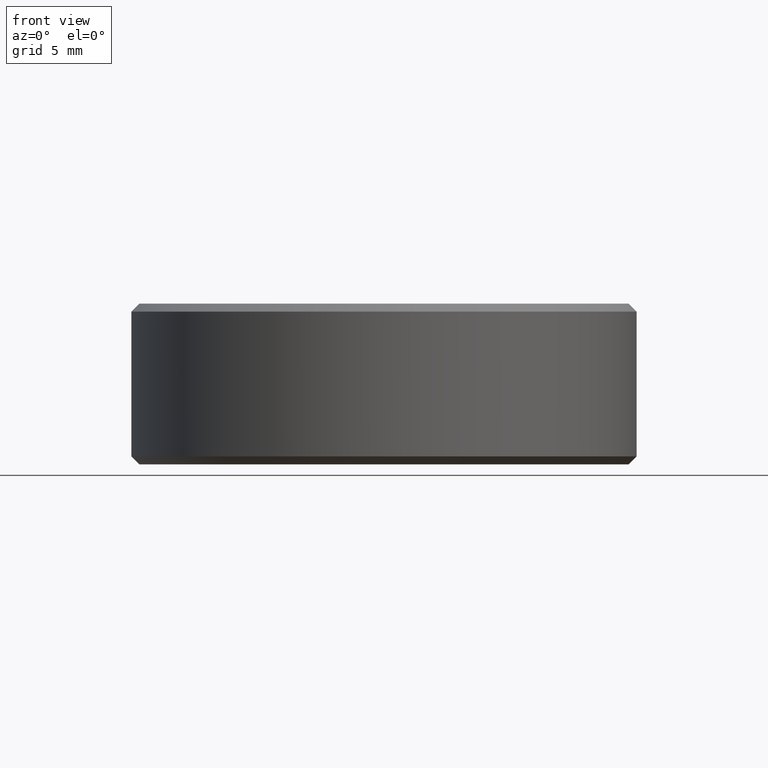
[diagram: clean part render]
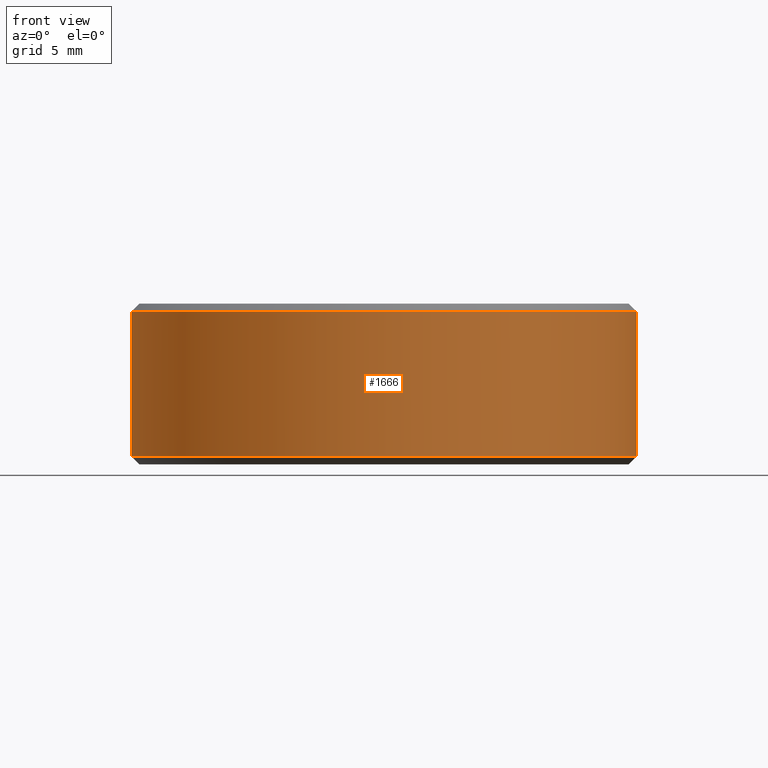
[diagram: same view with one face highlighted and labeled with its STEP entity id]
A machine part, front view. The second image highlights one B-rep face of the part: STEP entity #1666.
In plain terms, the highlighted cylindrical surface (partial cylindrical patch) has radius 17.4625 mm, axis along (-0, -0, 1).
Its self-contained STEP definition (entity closure, byte-faithful):
#14 = CYLINDRICAL_SURFACE ( 'NONE', #942, 0.6875000000000000000 ) ;
#179 = AXIS2_PLACEMENT_3D ( 'NONE', #820, #1554, #1887 ) ;
#184 = DIRECTION ( 'NONE',  ( -0.0000000000000000000, -0.0000000000000000000, 1.000000000000000000 ) ) ;
#237 = DIRECTION ( 'NONE',  ( -0.0000000000000000000, -0.0000000000000000000, 1.000000000000000000 ) ) ;
#257 = DIRECTION ( 'NONE',  ( -0.0000000000000000000, -0.0000000000000000000, 1.000000000000000000 ) ) ;
#269 = EDGE_CURVE ( 'NONE', #607, #1079, #2077, .T. ) ;
#302 = ORIENTED_EDGE ( 'NONE', *, *, #269, .F. ) ;
#337 = VERTEX_POINT ( 'NONE', #1918 ) ;
#418 = AXIS2_PLACEMENT_3D ( 'NONE', #1354, #257, #2096 ) ;
#607 = VERTEX_POINT ( 'NONE', #936 ) ;
#608 = CARTESIAN_POINT ( 'NONE',  ( 0.6875000000000000000, 8.419446744138052529E-17, 0.1968750000000000777 ) ) ;
#762 = CARTESIAN_POINT ( 'NONE',  ( 0.0000000000000000000, 0.0000000000000000000, 0.2187500000000000000 ) ) ;
#804 = CIRCLE ( 'NONE', #418, 0.6875000000000000000 ) ;
#820 = CARTESIAN_POINT ( 'NONE',  ( 0.0000000000000000000, 0.0000000000000000000, 0.1968750000000000777 ) ) ;
#821 = EDGE_CURVE ( 'NONE', #1702, #1079, #1624, .T. ) ;
#826 = LINE ( 'NONE', #1560, #2067 ) ;
#841 = CARTESIAN_POINT ( 'NONE',  ( 0.6875000000000000000, 0.0000000000000000000, -0.1968750000000001610 ) ) ;
#936 = CARTESIAN_POINT ( 'NONE',  ( -0.6875000000000000000, 0.0000000000000000000, 0.1968750000000000777 ) ) ;
#942 = AXIS2_PLACEMENT_3D ( 'NONE', #762, #237, #1313 ) ;
#1079 = VERTEX_POINT ( 'NONE', #608 ) ;
#1313 = DIRECTION ( 'NONE',  ( 1.000000000000000000, 0.0000000000000000000, 0.0000000000000000000 ) ) ;
#1354 = CARTESIAN_POINT ( 'NONE',  ( 0.0000000000000000000, 0.0000000000000000000, -0.1968750000000001610 ) ) ;
#1440 = CARTESIAN_POINT ( 'NONE',  ( 0.6875000000000000000, 0.0000000000000000000, 0.2187500000000000000 ) ) ;
#1550 = ORIENTED_EDGE ( 'NONE', *, *, #2392, .T. ) ;
#1554 = DIRECTION ( 'NONE',  ( -0.0000000000000000000, -0.0000000000000000000, 1.000000000000000000 ) ) ;
#1555 = EDGE_CURVE ( 'NONE', #337, #607, #826, .T. ) ;
#1560 = CARTESIAN_POINT ( 'NONE',  ( -0.6875000000000000000, 8.419446744138052529E-17, 0.2187500000000000000 ) ) ;
#1624 = LINE ( 'NONE', #1440, #2063 ) ;
#1634 = EDGE_LOOP ( 'NONE', ( #1769, #1550, #2196, #302 ) ) ;
#1666 = ADVANCED_FACE ( 'NONE', ( #2055 ), #14, .T. ) ;
#1702 = VERTEX_POINT ( 'NONE', #841 ) ;
#1769 = ORIENTED_EDGE ( 'NONE', *, *, #1555, .F. ) ;
#1887 = DIRECTION ( 'NONE',  ( 1.000000000000000000, 0.0000000000000000000, 0.0000000000000000000 ) ) ;
#1918 = CARTESIAN_POINT ( 'NONE',  ( -0.6875000000000000000, 8.419446744138052529E-17, -0.1968750000000001610 ) ) ;
#2055 = FACE_OUTER_BOUND ( 'NONE', #1634, .T. ) ;
#2063 = VECTOR ( 'NONE', #184, 39.37007874015748143 ) ;
#2067 = VECTOR ( 'NONE', #2303, 39.37007874015748143 ) ;
#2077 = CIRCLE ( 'NONE', #179, 0.6875000000000000000 ) ;
#2096 = DIRECTION ( 'NONE',  ( 1.000000000000000000, 0.0000000000000000000, 0.0000000000000000000 ) ) ;
#2196 = ORIENTED_EDGE ( 'NONE', *, *, #821, .T. ) ;
#2303 = DIRECTION ( 'NONE',  ( -0.0000000000000000000, -0.0000000000000000000, 1.000000000000000000 ) ) ;
#2392 = EDGE_CURVE ( 'NONE', #337, #1702, #804, .T. ) ;